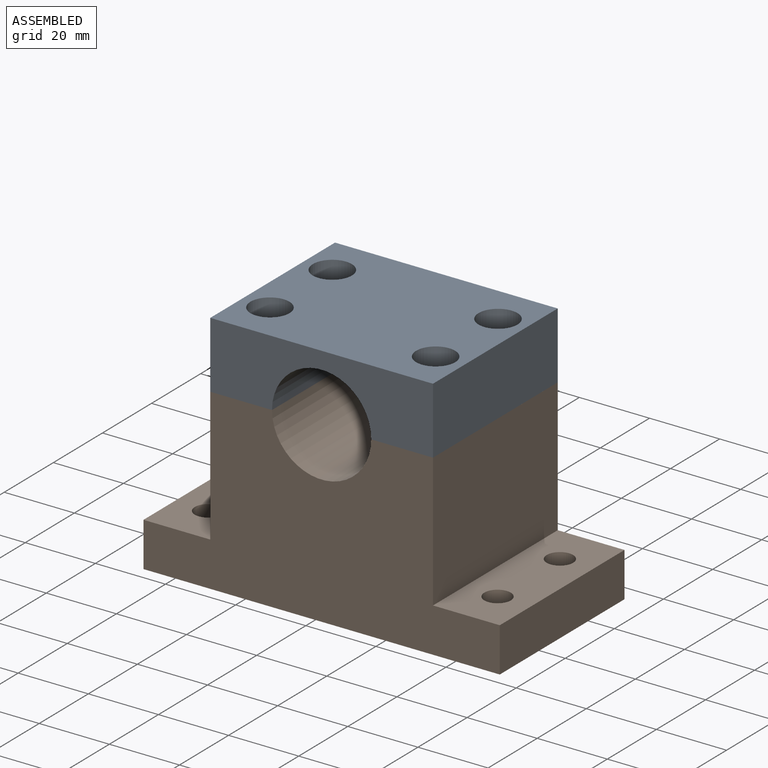
[diagram: assembled view]
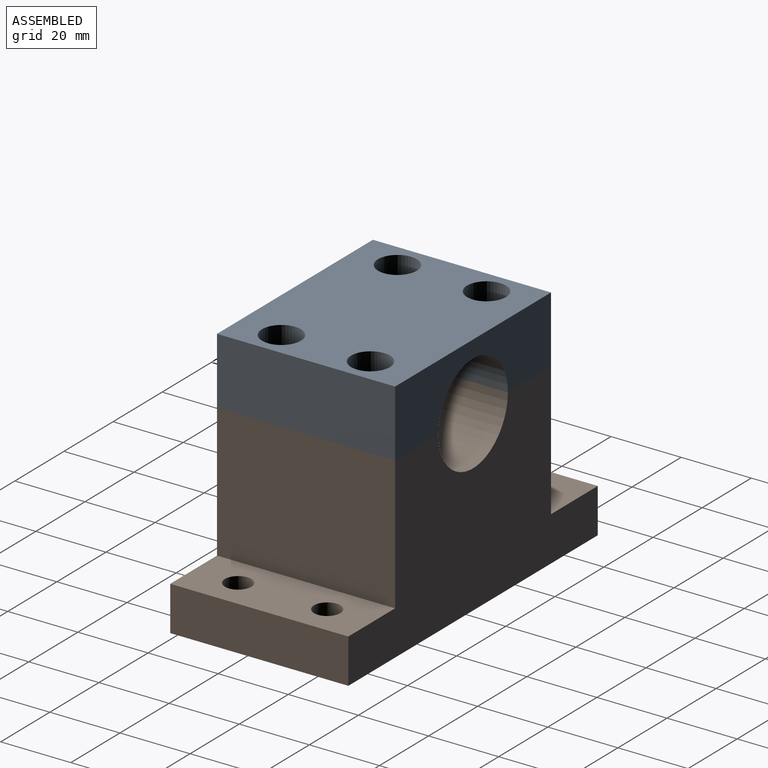
[diagram: assembled view, second angle]
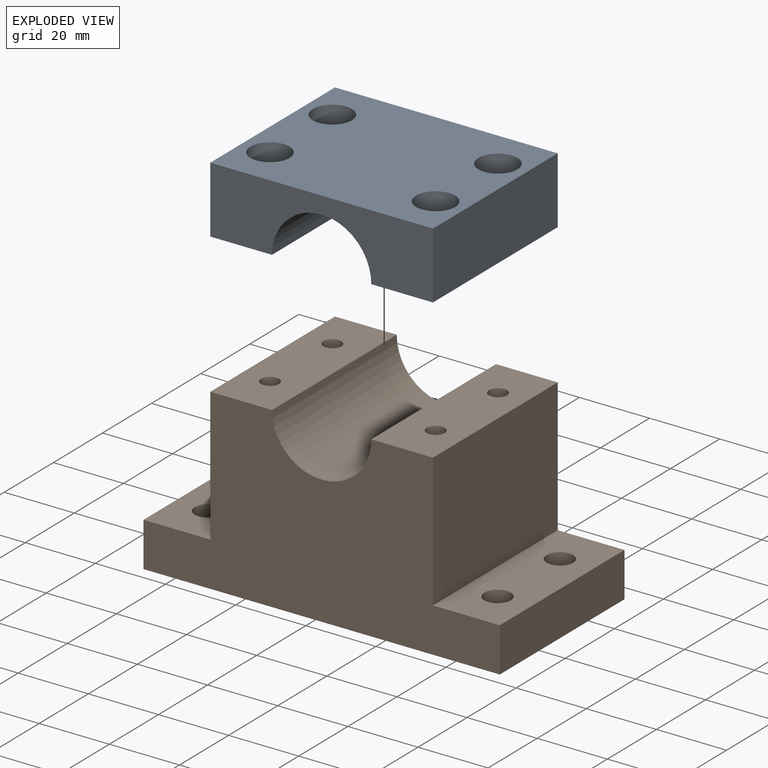
[diagram: exploded view]
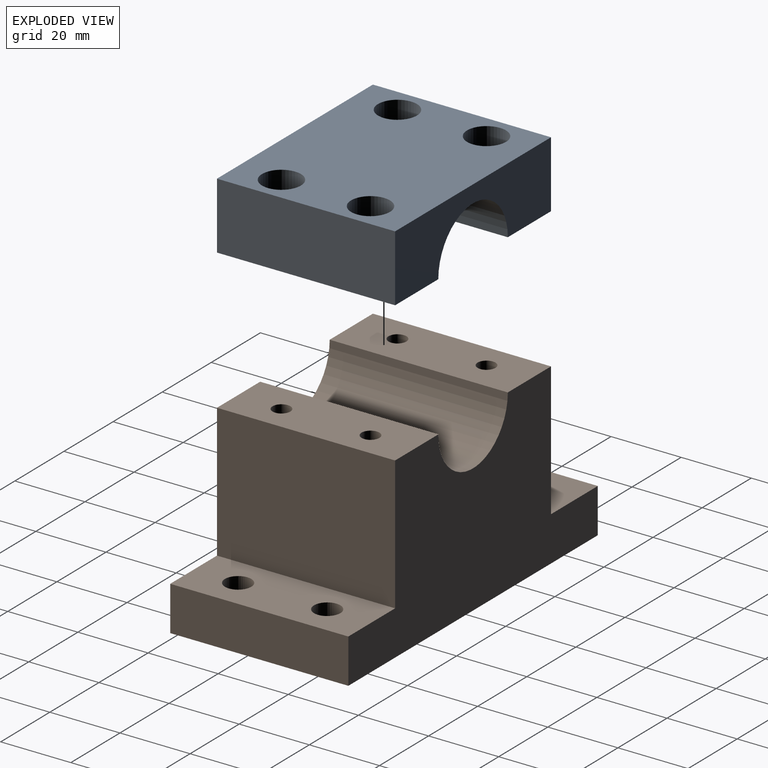
[diagram: exploded view, second angle]
ASSEMBLY  parts=2 mates=2
PART A: 20 faces, bbox 63.5x50.8x19.1 mm
  f0: cylinder r=14.16mm len=50.8mm, axis (0,-1,0), area 2259.9mm2, adj f1,f5,f6,f7
  f1: plane 50.8x17.59mm, normal (0,0,-1), area 804.2mm2, adj f0,f2,f6,f7,f14,f17
  f2: plane 50.8x19.05mm, normal (1,0,0), area 967.7mm2, adj f1,f3,f6,f7
  f3: plane 63.5x50.8mm, normal (0,0,1), area 2837.9mm2, adj f2,f4,f6,f7,f10,f13,f16,f19
  f4: plane 50.8x19.05mm, normal (-1,0,0), area 967.7mm2, adj f3,f5,f6,f7
  f5: plane 50.8x17.59mm, normal (0,0,-1), area 804.2mm2, adj f0,f4,f6,f7,f8,f11
  f6: plane 63.5x19.05mm, normal (0,1,0), area 894.7mm2, adj f0,f1,f2,f3,f4,f5
  f7: plane 63.5x19.05mm, normal (0,-1,0), area 894.7mm2, adj f0,f1,f2,f3,f4,f5
  f8: cylinder r=3.77mm len=12.7mm, axis (0,0,1), area 301mm2, adj f5,f9
  f9: plane 11.11x11.11mm, normal (0,0,1), area 52.3mm2, adj f8,f10
  f10: cylinder r=5.56mm len=11.11mm, axis (0,0,1), area 221.7mm2, adj f3,f9
  f11: cylinder r=3.77mm len=12.7mm, axis (0,0,1), area 301mm2, adj f5,f12
  f12: plane 11.11x11.11mm, normal (0,0,1), area 52.3mm2, adj f11,f13
  f13: cylinder r=5.56mm len=11.11mm, axis (0,0,1), area 221.7mm2, adj f3,f12
  f14: cylinder r=3.77mm len=12.7mm, axis (0,0,1), area 301mm2, adj f1,f15
  f15: plane 11.11x11.11mm, normal (0,0,1), area 52.3mm2, adj f14,f16
  f16: cylinder r=5.56mm len=11.11mm, axis (0,0,1), area 221.7mm2, adj f3,f15
  f17: cylinder r=3.77mm len=12.7mm, axis (0,0,1), area 301mm2, adj f1,f18
  f18: plane 11.11x11.11mm, normal (0,0,1), area 52.3mm2, adj f17,f19
  f19: cylinder r=5.56mm len=11.11mm, axis (0,0,1), area 221.7mm2, adj f3,f18
PART B: 24 faces, bbox 101.6x50.8x50.8 mm
  f0: plane 50.8x38.1mm, normal (-1,0,0), area 1935.5mm2, adj f1,f9,f10,f11
  f1: plane 50.8x19.05mm, normal (0,0,1), area 878.3mm2, adj f0,f2,f10,f11,f22,f23
  f2: plane 50.8x12.7mm, normal (-1,0,0), area 645.2mm2, adj f1,f3,f10,f11
  f3: plane 101.6x50.8mm, normal (0,0,-1), area 4982.5mm2, adj f2,f4,f10,f11,f20,f21,f22,f23
  f4: plane 50.8x12.7mm, normal (1,0,0), area 645.2mm2, adj f3,f5,f10,f11
  f5: plane 50.8x19.05mm, normal (0,0,1), area 878.3mm2, adj f4,f6,f10,f11,f20,f21
  f6: plane 50.8x38.1mm, normal (1,0,0), area 1935.5mm2, adj f5,f7,f10,f11
  f7: plane 50.8x17.59mm, normal (0,0,1), area 852.6mm2, adj f6,f8,f10,f11,f17,f19
  f8: cylinder r=14.16mm len=50.8mm, axis (0,-1,0), area 2259.9mm2, adj f7,f9,f10,f11
  f9: plane 50.8x17.59mm, normal (0,0,1), area 852.6mm2, adj f0,f8,f10,f11,f13,f15
  f10: plane 101.6x50.8mm, normal (0,1,0), area 3394.7mm2, adj f0,f1,f2,f3,f4,f5,f6,f7
  f11: plane 101.6x50.8mm, normal (0,-1,0), area 3394.7mm2, adj f0,f1,f2,f3,f4,f5,f6,f7
  f12: cone r=0mm half-angle=59deg, axis (0,0,1), area 23.9mm2, adj f13
  f13: cylinder r=2.55mm len=16.51mm, axis (0,0,1), area 264.8mm2, adj f9,f12
  f14: cone r=0mm half-angle=59deg, axis (0,0,1), area 23.9mm2, adj f15
  f15: cylinder r=2.55mm len=16.51mm, axis (0,0,1), area 264.8mm2, adj f9,f14
  f16: cone r=0mm half-angle=59deg, axis (0,0,1), area 23.9mm2, adj f17
  f17: cylinder r=2.55mm len=16.51mm, axis (0,0,1), area 264.8mm2, adj f7,f16
  f18: cone r=0mm half-angle=59deg, axis (0,0,1), area 23.9mm2, adj f19
  f19: cylinder r=2.55mm len=16.51mm, axis (0,0,1), area 264.8mm2, adj f7,f18
  f20: cylinder r=3.77mm len=12.7mm, axis (0,0,-1), area 301mm2, adj f3,f5
  f21: cylinder r=3.77mm len=12.7mm, axis (0,0,-1), area 301mm2, adj f3,f5
  f22: cylinder r=3.77mm len=12.7mm, axis (0,0,-1), area 301mm2, adj f1,f3
  f23: cylinder r=3.77mm len=12.7mm, axis (0,0,-1), area 301mm2, adj f1,f3
PLACE A t=(-7.51,-11.36,55.81)mm
PLACE B t=(-7.51,-11.36,5.01)mm
MATE planar A.f5 <-> B.f9  axis (0,0,-1) through (-30.39,14.04,55.81)mm
MATE cylindrical A.f11 <-> B.f14  axis (0,0,-1) through (-31.13,1.34,55.81)mm
